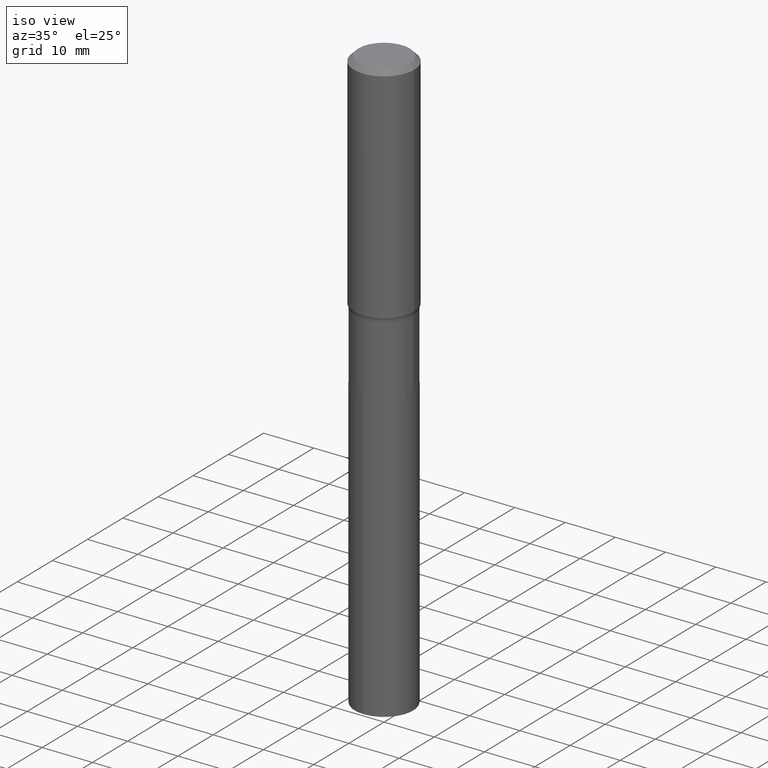
[diagram: clean part render]
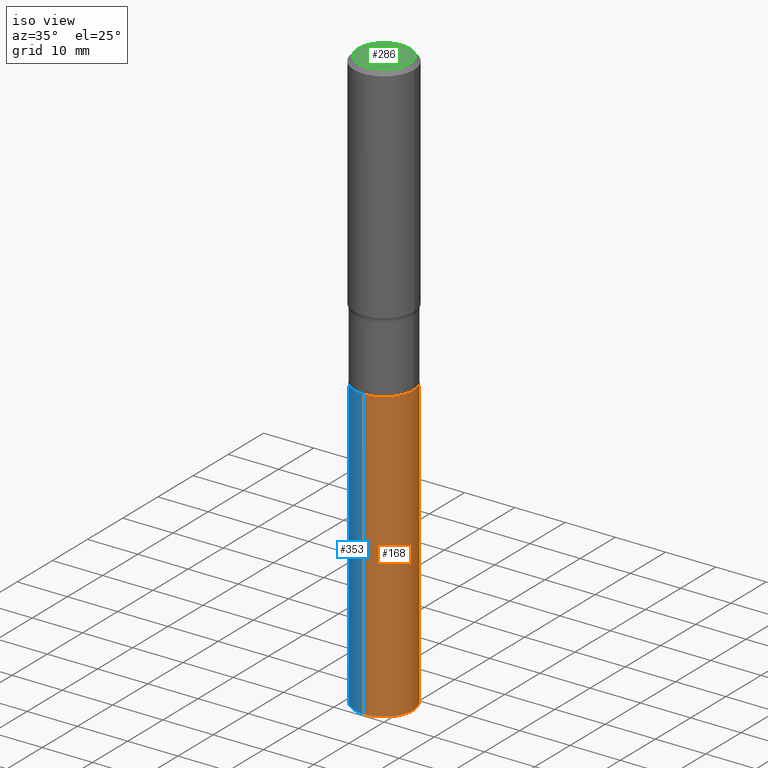
[diagram: same view with three faces highlighted in distinct colors, each labeled with its STEP entity id]
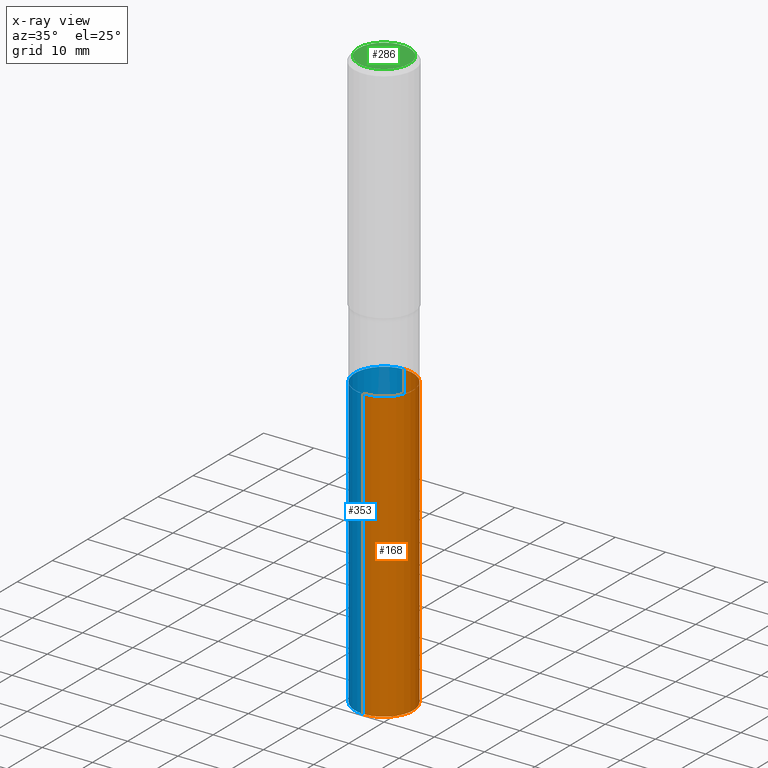
[diagram: x-ray of the same camera — body ghosted, the three highlighted faces saturated]
A machine part, iso view with three faces highlighted in distinct colors.
The next image is the same camera in x-ray (body ghosted, the three faces saturated) — at least one of them is partly hidden behind the body in this view.
Their STEP definitions:

[orange] entity #168 — the highlighted cylindrical surface (edge-blend (fillet) strip) has radius 5.8001 mm, axis along (-0, 0, 1).
#29 = DIRECTION ( 'NONE',  ( -2.445500184891920904E-29, 3.491436402749065523E-15, 1.000000000000000000 ) ) ;
#35 = ORIENTED_EDGE ( 'NONE', *, *, #132, .T. ) ;
#47 = EDGE_CURVE ( 'NONE', #284, #290, #492, .T. ) ;
#54 = DIRECTION ( 'NONE',  ( -2.445500184891920904E-29, 3.491436402749065523E-15, 1.000000000000000000 ) ) ;
#63 = EDGE_LOOP ( 'NONE', ( #35, #447, #162, #108 ) ) ;
#70 = DIRECTION ( 'NONE',  ( -6.982962677686265922E-15, -1.000000000000000000, 3.589027361941226102E-15 ) ) ;
#73 = DIRECTION ( 'NONE',  ( -2.445500184891920904E-29, 3.491436402749065523E-15, 1.000000000000000000 ) ) ;
#74 = AXIS2_PLACEMENT_3D ( 'NONE', #196, #298, #425 ) ;
#98 = LINE ( 'NONE', #291, #435 ) ;
#108 = ORIENTED_EDGE ( 'NONE', *, *, #47, .F. ) ;
#131 = CARTESIAN_POINT ( 'NONE',  ( 1.622524337108299986E-15, 0.2283499999999839269, -4.573701521559485172 ) ) ;
#132 = EDGE_CURVE ( 'NONE', #284, #173, #186, .T. ) ;
#135 = CARTESIAN_POINT ( 'NONE',  ( -1.594559527449602149E-15, -0.2283500000000080743, -2.307099999999998818 ) ) ;
#147 = AXIS2_PLACEMENT_3D ( 'NONE', #388, #54, #276 ) ;
#162 = ORIENTED_EDGE ( 'NONE', *, *, #446, .F. ) ;
#164 = EDGE_CURVE ( 'NONE', #173, #413, #98, .T. ) ;
#165 = CYLINDRICAL_SURFACE ( 'NONE', #448, 0.2283499999999999974 ) ;
#168 = ADVANCED_FACE ( 'NONE', ( #490 ), #165, .T. ) ;
#173 = VERTEX_POINT ( 'NONE', #131 ) ;
#182 = CARTESIAN_POINT ( 'NONE',  ( -1.594559527449546337E-15, -0.2283500000000158736, -4.573701521559483396 ) ) ;
#186 = CIRCLE ( 'NONE', #74, 0.2283499999999999974 ) ;
#196 = CARTESIAN_POINT ( 'NONE',  ( 1.118491552279975631E-28, -1.596889165974422401E-14, -4.573701521559484284 ) ) ;
#260 = DIRECTION ( 'NONE',  ( -2.445500184891920904E-29, 3.491436402749065523E-15, 1.000000000000000000 ) ) ;
#276 = DIRECTION ( 'NONE',  ( -6.982962677686265922E-15, -1.000000000000000000, 3.589027361941226102E-15 ) ) ;
#284 = VERTEX_POINT ( 'NONE', #182 ) ;
#290 = VERTEX_POINT ( 'NONE', #342 ) ;
#291 = CARTESIAN_POINT ( 'NONE',  ( 1.622524337108245160E-15, 0.2283499999999919483, -2.307100000000000151 ) ) ;
#298 = DIRECTION ( 'NONE',  ( -2.445500184891920904E-29, 3.491436402749065523E-15, 1.000000000000000000 ) ) ;
#317 = CARTESIAN_POINT ( 'NONE',  ( 1.622524337108300972E-15, 0.2283499999999919483, -2.307100000000000151 ) ) ;
#324 = VECTOR ( 'NONE', #29, 39.37007874015748143 ) ;
#342 = CARTESIAN_POINT ( 'NONE',  ( -1.594559527449602149E-15, -0.2283500000000080743, -2.307099999999998818 ) ) ;
#388 = CARTESIAN_POINT ( 'NONE',  ( 5.641941082749727469E-29, -8.055196596845019678E-15, -2.307099999999999707 ) ) ;
#405 = CIRCLE ( 'NONE', #147, 0.2283499999999999974 ) ;
#413 = VERTEX_POINT ( 'NONE', #317 ) ;
#414 = CARTESIAN_POINT ( 'NONE',  ( 5.641941082749727469E-29, -8.055196596845019678E-15, -2.307099999999999707 ) ) ;
#425 = DIRECTION ( 'NONE',  ( -6.982962677686265922E-15, -1.000000000000000000, 2.392684907960817401E-15 ) ) ;
#435 = VECTOR ( 'NONE', #260, 39.37007874015748143 ) ;
#446 = EDGE_CURVE ( 'NONE', #290, #413, #405, .T. ) ;
#447 = ORIENTED_EDGE ( 'NONE', *, *, #164, .T. ) ;
#448 = AXIS2_PLACEMENT_3D ( 'NONE', #414, #73, #70 ) ;
#490 = FACE_OUTER_BOUND ( 'NONE', #63, .T. ) ;
#492 = LINE ( 'NONE', #135, #324 ) ;

[blue] entity #353 — the highlighted cylindrical surface (edge-blend (fillet) strip) has radius 5.8001 mm, axis along (-0, 0, 1).
#26 = CIRCLE ( 'NONE', #467, 0.2283499999999999974 ) ;
#29 = DIRECTION ( 'NONE',  ( -2.445500184891920904E-29, 3.491436402749065523E-15, 1.000000000000000000 ) ) ;
#33 = EDGE_LOOP ( 'NONE', ( #214, #326, #376, #454 ) ) ;
#47 = EDGE_CURVE ( 'NONE', #284, #290, #492, .T. ) ;
#56 = DIRECTION ( 'NONE',  ( -2.445500184891920904E-29, 3.491436402749065523E-15, 1.000000000000000000 ) ) ;
#85 = CIRCLE ( 'NONE', #354, 0.2283499999999999974 ) ;
#88 = FACE_OUTER_BOUND ( 'NONE', #33, .T. ) ;
#89 = DIRECTION ( 'NONE',  ( -2.445500184891920904E-29, 3.491436402749065523E-15, 1.000000000000000000 ) ) ;
#98 = LINE ( 'NONE', #291, #435 ) ;
#131 = CARTESIAN_POINT ( 'NONE',  ( 1.622524337108299986E-15, 0.2283499999999839269, -4.573701521559485172 ) ) ;
#135 = CARTESIAN_POINT ( 'NONE',  ( -1.594559527449602149E-15, -0.2283500000000080743, -2.307099999999998818 ) ) ;
#138 = AXIS2_PLACEMENT_3D ( 'NONE', #431, #89, #371 ) ;
#150 = DIRECTION ( 'NONE',  ( -2.445500184891920904E-29, 3.491436402749065523E-15, 1.000000000000000000 ) ) ;
#164 = EDGE_CURVE ( 'NONE', #173, #413, #98, .T. ) ;
#173 = VERTEX_POINT ( 'NONE', #131 ) ;
#179 = CYLINDRICAL_SURFACE ( 'NONE', #138, 0.2283499999999999974 ) ;
#182 = CARTESIAN_POINT ( 'NONE',  ( -1.594559527449546337E-15, -0.2283500000000158736, -4.573701521559483396 ) ) ;
#214 = ORIENTED_EDGE ( 'NONE', *, *, #164, .F. ) ;
#254 = EDGE_CURVE ( 'NONE', #173, #284, #85, .T. ) ;
#260 = DIRECTION ( 'NONE',  ( -2.445500184891920904E-29, 3.491436402749065523E-15, 1.000000000000000000 ) ) ;
#284 = VERTEX_POINT ( 'NONE', #182 ) ;
#290 = VERTEX_POINT ( 'NONE', #342 ) ;
#291 = CARTESIAN_POINT ( 'NONE',  ( 1.622524337108245160E-15, 0.2283499999999919483, -2.307100000000000151 ) ) ;
#317 = CARTESIAN_POINT ( 'NONE',  ( 1.622524337108300972E-15, 0.2283499999999919483, -2.307100000000000151 ) ) ;
#324 = VECTOR ( 'NONE', #29, 39.37007874015748143 ) ;
#326 = ORIENTED_EDGE ( 'NONE', *, *, #254, .T. ) ;
#342 = CARTESIAN_POINT ( 'NONE',  ( -1.594559527449602149E-15, -0.2283500000000080743, -2.307099999999998818 ) ) ;
#353 = ADVANCED_FACE ( 'NONE', ( #88 ), #179, .T. ) ;
#354 = AXIS2_PLACEMENT_3D ( 'NONE', #379, #150, #419 ) ;
#371 = DIRECTION ( 'NONE',  ( -6.982962677686265922E-15, -1.000000000000000000, 3.589027361941226102E-15 ) ) ;
#376 = ORIENTED_EDGE ( 'NONE', *, *, #47, .T. ) ;
#379 = CARTESIAN_POINT ( 'NONE',  ( 1.118491552279975631E-28, -1.596889165974422401E-14, -4.573701521559484284 ) ) ;
#392 = DIRECTION ( 'NONE',  ( -6.982962677686265922E-15, -1.000000000000000000, 3.589027361941226102E-15 ) ) ;
#413 = VERTEX_POINT ( 'NONE', #317 ) ;
#419 = DIRECTION ( 'NONE',  ( -6.982962677686265922E-15, -1.000000000000000000, 2.392684907960817401E-15 ) ) ;
#423 = EDGE_CURVE ( 'NONE', #413, #290, #26, .T. ) ;
#431 = CARTESIAN_POINT ( 'NONE',  ( 5.641941082749727469E-29, -8.055196596845019678E-15, -2.307099999999999707 ) ) ;
#435 = VECTOR ( 'NONE', #260, 39.37007874015748143 ) ;
#454 = ORIENTED_EDGE ( 'NONE', *, *, #423, .F. ) ;
#467 = AXIS2_PLACEMENT_3D ( 'NONE', #476, #56, #392 ) ;
#476 = CARTESIAN_POINT ( 'NONE',  ( 5.641941082749727469E-29, -8.055196596845019678E-15, -2.307099999999999707 ) ) ;
#492 = LINE ( 'NONE', #135, #324 ) ;

[green] entity #286 — the highlighted planar face has unit normal (0, -0, -1).
#34 = AXIS2_PLACEMENT_3D ( 'NONE', #223, #80, #42 ) ;
#37 = PLANE ( 'NONE',  #355 ) ;
#42 = DIRECTION ( 'NONE',  ( 1.000000000000000000, -6.982962677686266711E-15, 4.876140833081945105E-29 ) ) ;
#49 = DIRECTION ( 'NONE',  ( -1.000000000000000000, 6.982962677686265922E-15, -4.876176775795935793E-29 ) ) ;
#80 = DIRECTION ( 'NONE',  ( -2.445468806185136597E-29, 3.491481338843145583E-15, 1.000000000000000000 ) ) ;
#83 = CARTESIAN_POINT ( 'NONE',  ( -5.008488096090115757E-47, 7.150793614331959538E-33, 2.048068690724057264E-18 ) ) ;
#106 = ORIENTED_EDGE ( 'NONE', *, *, #268, .T. ) ;
#151 = CIRCLE ( 'NONE', #311, 0.2007700000000000040 ) ;
#166 = VERTEX_POINT ( 'NONE', #210 ) ;
#185 = EDGE_CURVE ( 'NONE', #166, #236, #151, .T. ) ;
#191 = FACE_OUTER_BOUND ( 'NONE', #416, .T. ) ;
#210 = CARTESIAN_POINT ( 'NONE',  ( 0.2007700000000000040, -1.560767496960719672E-15, 4.096137381458473721E-18 ) ) ;
#223 = CARTESIAN_POINT ( 'NONE',  ( -1.001697619218023151E-46, 1.430158722866391908E-32, 4.096137381448114529E-18 ) ) ;
#236 = VERTEX_POINT ( 'NONE', #442 ) ;
#243 = CIRCLE ( 'NONE', #34, 0.2007700000000000040 ) ;
#268 = EDGE_CURVE ( 'NONE', #236, #166, #243, .T. ) ;
#286 = ADVANCED_FACE ( 'NONE', ( #191 ), #37, .F. ) ;
#311 = AXIS2_PLACEMENT_3D ( 'NONE', #485, #403, #322 ) ;
#322 = DIRECTION ( 'NONE',  ( 1.000000000000000000, -6.982962677686266711E-15, 4.876140833081945105E-29 ) ) ;
#335 = ORIENTED_EDGE ( 'NONE', *, *, #185, .T. ) ;
#340 = DIRECTION ( 'NONE',  ( 2.438088387897960049E-29, -3.491481338843145188E-15, -1.000000000000000000 ) ) ;
#355 = AXIS2_PLACEMENT_3D ( 'NONE', #83, #340, #49 ) ;
#403 = DIRECTION ( 'NONE',  ( -2.445468806185136597E-29, 3.491481338843145583E-15, 1.000000000000000000 ) ) ;
#416 = EDGE_LOOP ( 'NONE', ( #106, #335 ) ) ;
#442 = CARTESIAN_POINT ( 'NONE',  ( -0.2007700000000000040, 1.463821008716677338E-15, 4.096137381438094301E-18 ) ) ;
#485 = CARTESIAN_POINT ( 'NONE',  ( -1.001697619218023151E-46, 1.430158722866391908E-32, 4.096137381448114529E-18 ) ) ;